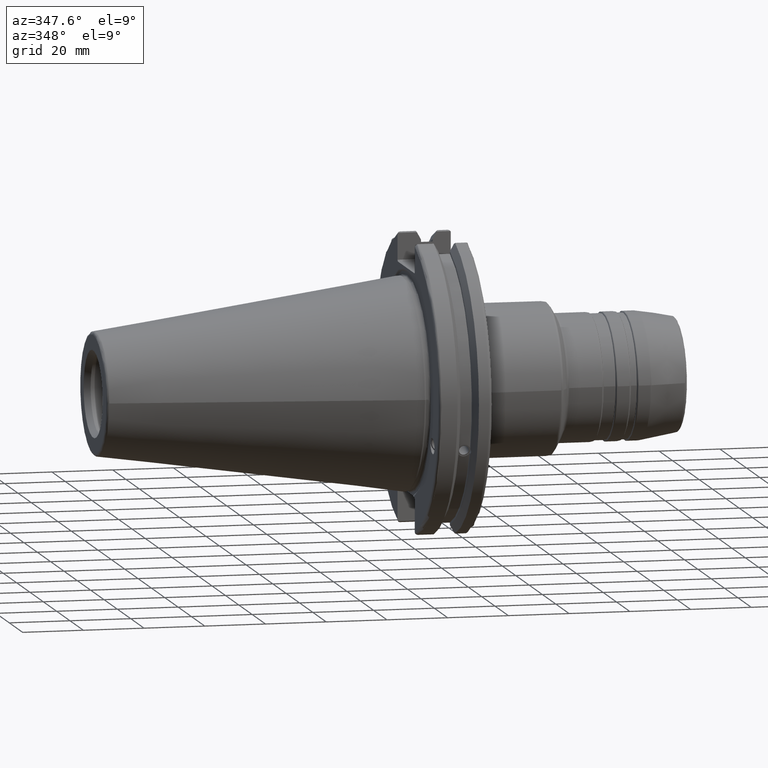
[diagram: clean part render]
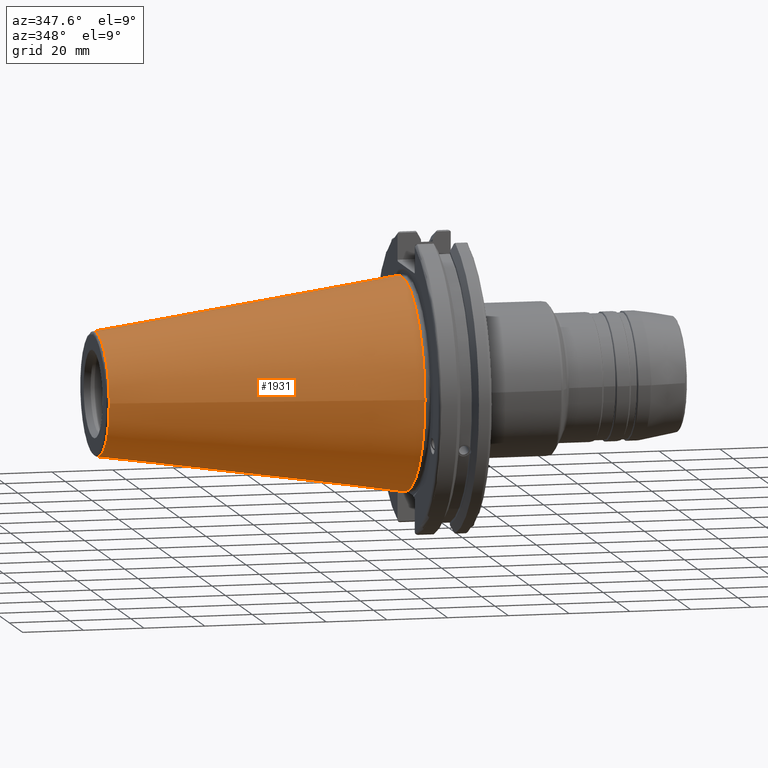
[diagram: same view with one face highlighted and labeled with its STEP entity id]
A machine part, auxiliary view. The second image highlights one B-rep face of the part: STEP entity #1931.
In plain terms, the highlighted conical surface has half-angle 8.297 deg.
Its self-contained STEP definition (entity closure, byte-faithful):
#143=CONICAL_SURFACE('',#2177,27.5166666666666,0.14481249823894);
#232=LINE('',#3798,#336);
#336=VECTOR('',#2696,27.5166666666666);
#465=FACE_OUTER_BOUND('',#588,.T.);
#588=EDGE_LOOP('',(#1684,#1685,#1686,#1687,#1688));
#732=CIRCLE('',#2171,20.233121911427);
#733=CIRCLE('',#2172,20.233121911427);
#737=CIRCLE('',#2178,34.925);
#931=VERTEX_POINT('',#3785);
#932=VERTEX_POINT('',#3786);
#935=VERTEX_POINT('',#3796);
#1198=EDGE_CURVE('',#931,#932,#732,.T.);
#1199=EDGE_CURVE('',#932,#931,#733,.T.);
#1203=EDGE_CURVE('',#935,#935,#737,.T.);
#1204=EDGE_CURVE('',#935,#932,#232,.T.);
#1684=ORIENTED_EDGE('',*,*,#1203,.F.);
#1685=ORIENTED_EDGE('',*,*,#1204,.T.);
#1686=ORIENTED_EDGE('',*,*,#1198,.F.);
#1687=ORIENTED_EDGE('',*,*,#1199,.F.);
#1688=ORIENTED_EDGE('',*,*,#1204,.F.);
#1931=ADVANCED_FACE('',(#465),#143,.T.);
#2171=AXIS2_PLACEMENT_3D('',#3787,#2680,#2681);
#2172=AXIS2_PLACEMENT_3D('',#3788,#2682,#2683);
#2177=AXIS2_PLACEMENT_3D('',#3795,#2692,#2693);
#2178=AXIS2_PLACEMENT_3D('',#3797,#2694,#2695);
#2680=DIRECTION('center_axis',(-1.,0.,0.));
#2681=DIRECTION('ref_axis',(0.,-1.,3.06161699786838E-17));
#2682=DIRECTION('center_axis',(-1.,0.,0.));
#2683=DIRECTION('ref_axis',(0.,-1.,3.06161699786838E-17));
#2692=DIRECTION('center_axis',(1.,0.,0.));
#2693=DIRECTION('ref_axis',(0.,1.,0.));
#2694=DIRECTION('center_axis',(1.,0.,0.));
#2695=DIRECTION('ref_axis',(0.,0.,-1.));
#2696=DIRECTION('',(-0.989532981063281,0.144306893071729,1.76724974695192E-17));
#3785=CARTESIAN_POINT('',(-100.744306893072,-2.47784279855872E-15,20.233121911427));
#3786=CARTESIAN_POINT('',(-100.744306893072,-20.233121911427,-2.47784279855872E-15));
#3787=CARTESIAN_POINT('Origin',(-100.744306893072,0.,-3.09730349819841E-15));
#3788=CARTESIAN_POINT('Origin',(-100.744306893072,0.,-3.09730349819841E-15));
#3795=CARTESIAN_POINT('Origin',(-50.8,0.,0.));
#3796=CARTESIAN_POINT('',(-8.88178419700125E-15,-34.925,-4.27707894602213E-15));
#3797=CARTESIAN_POINT('Origin',(0.,0.,0.));
#3798=CARTESIAN_POINT('',(-50.8,-27.5166666666666,-3.3698197756538E-15));